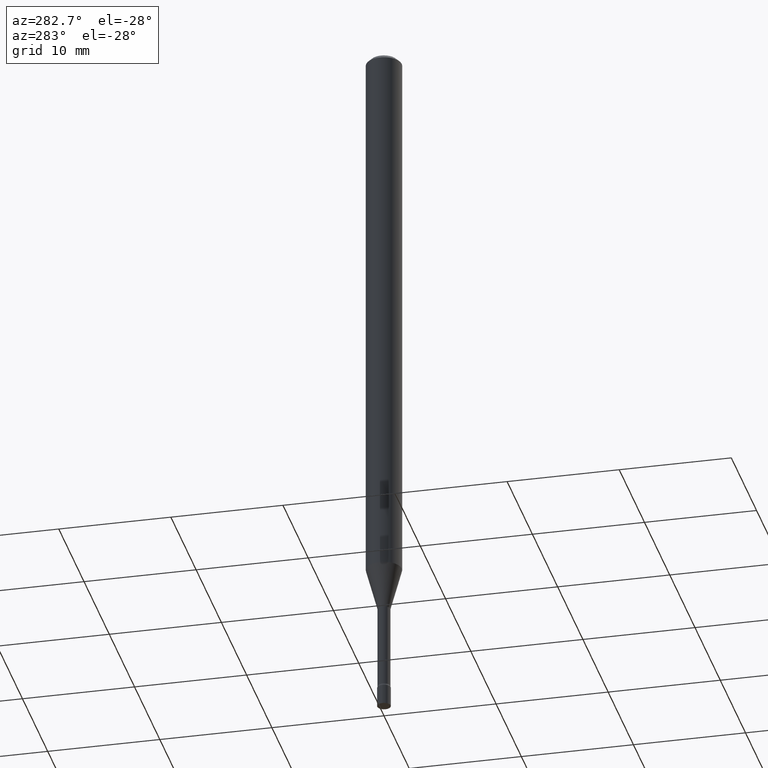
[diagram: clean part render]
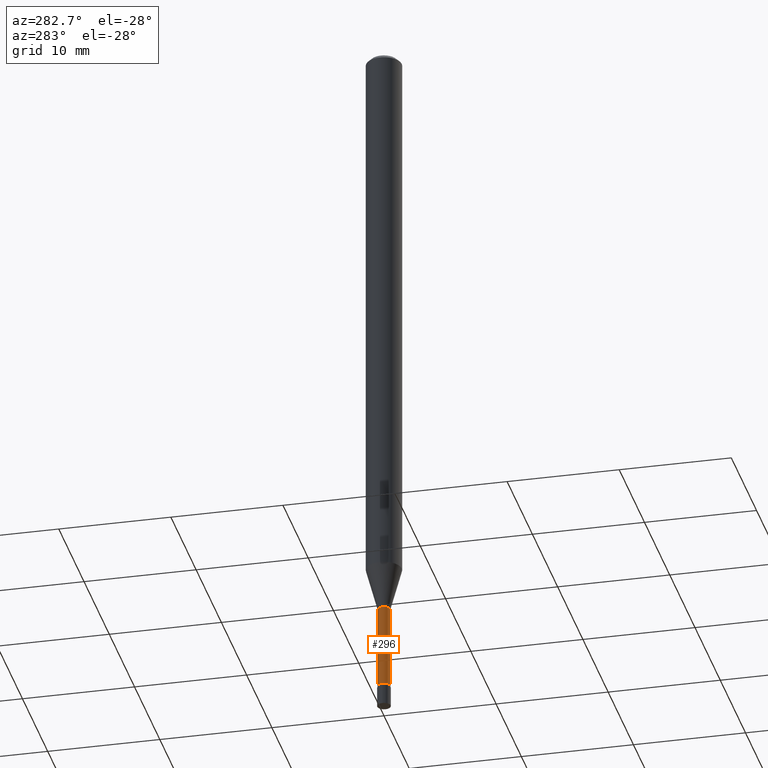
[diagram: same view with one face highlighted and labeled with its STEP entity id]
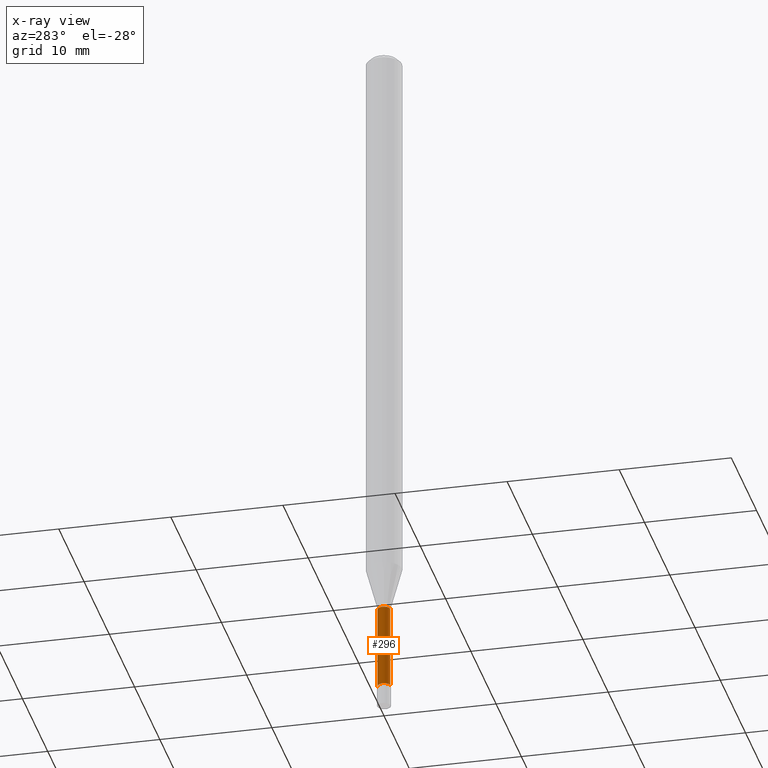
[diagram: x-ray of the same camera — body ghosted, the highlighted face saturated]
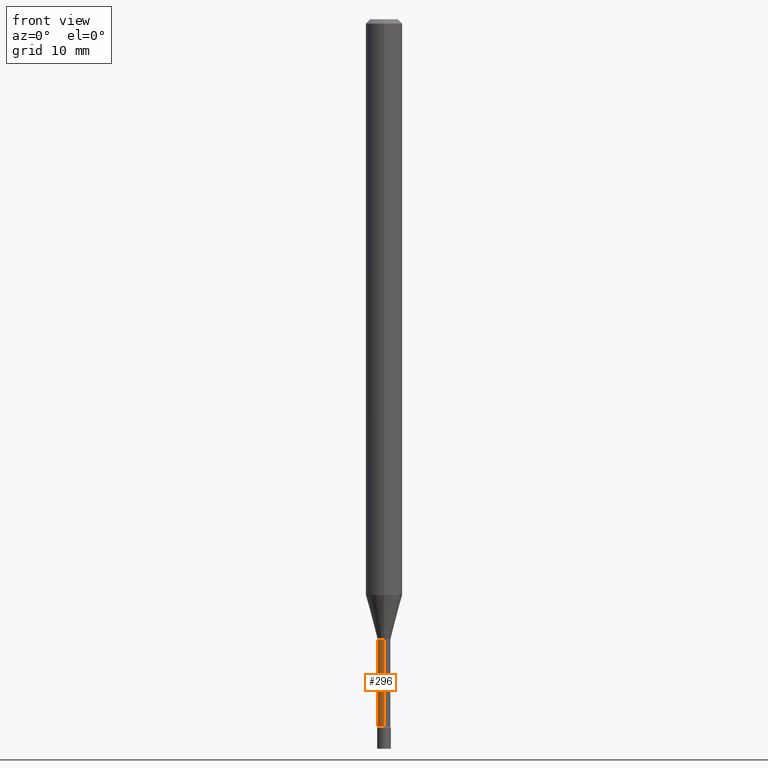
[diagram: same view with one face highlighted and labeled with its STEP entity id]
A machine part, auxiliary view. The second image highlights one B-rep face of the part: STEP entity #296.
The next image is the same camera in x-ray: the body ghosted, the highlighted face saturated — about 0% of this face is hidden behind the body in this view.
A second angle (front view) of the same face is appended — the face is thin or edge-on in the first view.
In plain terms, the highlighted cylindrical surface (edge-blend (fillet) strip) has radius 0.5613 mm, axis along (-0, 0, 1).
Its self-contained STEP definition (entity closure, byte-faithful):
#7 = CARTESIAN_POINT ( 'NONE',  ( 1.570299446030415141E-16, 0.02209999999999257697, -2.125974787463811300 ) ) ;
#17 = VECTOR ( 'NONE', #352, 39.37007874015748143 ) ;
#44 = DIRECTION ( 'NONE',  ( -6.982962677686265922E-15, -1.000000000000000000, 0.000000000000000000 ) ) ;
#57 = CARTESIAN_POINT ( 'NONE',  ( -1.543234751768144959E-16, -0.02210000000000742273, -2.125974787463811300 ) ) ;
#64 = CARTESIAN_POINT ( 'NONE',  ( 5.924547833782153992E-29, -8.458746088650004538E-15, -2.422672283192177645 ) ) ;
#73 = CARTESIAN_POINT ( 'NONE',  ( 0.000000000000000000, 0.000000000000000000, 0.000000000000000000 ) ) ;
#75 = ORIENTED_EDGE ( 'NONE', *, *, #483, .F. ) ;
#92 = DIRECTION ( 'NONE',  ( -2.445459864664737566E-29, 3.491494143609276390E-15, 1.000000000000000000 ) ) ;
#97 = AXIS2_PLACEMENT_3D ( 'NONE', #73, #386, #304 ) ;
#122 = CIRCLE ( 'NONE', #259, 0.02210000000000000159 ) ;
#159 = LINE ( 'NONE', #322, #183 ) ;
#178 = DIRECTION ( 'NONE',  ( -2.445459864664737566E-29, 3.491494143609276784E-15, 1.000000000000000000 ) ) ;
#181 = EDGE_LOOP ( 'NONE', ( #264, #252, #184, #75 ) ) ;
#183 = VECTOR ( 'NONE', #92, 39.37007874015748143 ) ;
#184 = ORIENTED_EDGE ( 'NONE', *, *, #434, .T. ) ;
#186 = CYLINDRICAL_SURFACE ( 'NONE', #97, 0.02210000000000003628 ) ;
#198 = LINE ( 'NONE', #516, #17 ) ;
#212 = DIRECTION ( 'NONE',  ( -6.982962677686265133E-15, -1.000000000000000000, 0.000000000000000000 ) ) ;
#220 = VERTEX_POINT ( 'NONE', #7 ) ;
#237 = EDGE_CURVE ( 'NONE', #489, #220, #159, .T. ) ;
#252 = ORIENTED_EDGE ( 'NONE', *, *, #469, .T. ) ;
#259 = AXIS2_PLACEMENT_3D ( 'NONE', #394, #178, #44 ) ;
#262 = CARTESIAN_POINT ( 'NONE',  ( 1.620037437533623579E-16, 0.02209999999999160900, -2.422672283192177645 ) ) ;
#264 = ORIENTED_EDGE ( 'NONE', *, *, #237, .F. ) ;
#296 = ADVANCED_FACE ( 'NONE', ( #430 ), #186, .T. ) ;
#304 = DIRECTION ( 'NONE',  ( -6.982962677686265922E-15, -1.000000000000000000, 3.491494143609276784E-15 ) ) ;
#322 = CARTESIAN_POINT ( 'NONE',  ( 1.570299446029823742E-16, 0.02210000000000003628, -7.716202057376514729E-17 ) ) ;
#324 = AXIS2_PLACEMENT_3D ( 'NONE', #64, #412, #212 ) ;
#345 = VERTEX_POINT ( 'NONE', #57 ) ;
#349 = CIRCLE ( 'NONE', #324, 0.02210000000000007098 ) ;
#352 = DIRECTION ( 'NONE',  ( -2.445459864664737566E-29, 3.491494143609276390E-15, 1.000000000000000000 ) ) ;
#375 = VERTEX_POINT ( 'NONE', #476 ) ;
#386 = DIRECTION ( 'NONE',  ( -2.445459864664737566E-29, 3.491494143609276784E-15, 1.000000000000000000 ) ) ;
#394 = CARTESIAN_POINT ( 'NONE',  ( 5.198986016031895640E-29, -7.422828519890872366E-15, -2.125974787463811300 ) ) ;
#412 = DIRECTION ( 'NONE',  ( -2.445459864664737566E-29, 3.491494143609276784E-15, 1.000000000000000000 ) ) ;
#430 = FACE_OUTER_BOUND ( 'NONE', #181, .T. ) ;
#434 = EDGE_CURVE ( 'NONE', #375, #345, #198, .T. ) ;
#469 = EDGE_CURVE ( 'NONE', #489, #375, #349, .T. ) ;
#476 = CARTESIAN_POINT ( 'NONE',  ( -1.543234751768077413E-16, -0.02210000000000852949, -2.422672283192177645 ) ) ;
#483 = EDGE_CURVE ( 'NONE', #220, #345, #122, .T. ) ;
#489 = VERTEX_POINT ( 'NONE', #262 ) ;
#516 = CARTESIAN_POINT ( 'NONE',  ( -1.543234751768667333E-16, -0.02210000000000003628, 7.716202057376514729E-17 ) ) ;